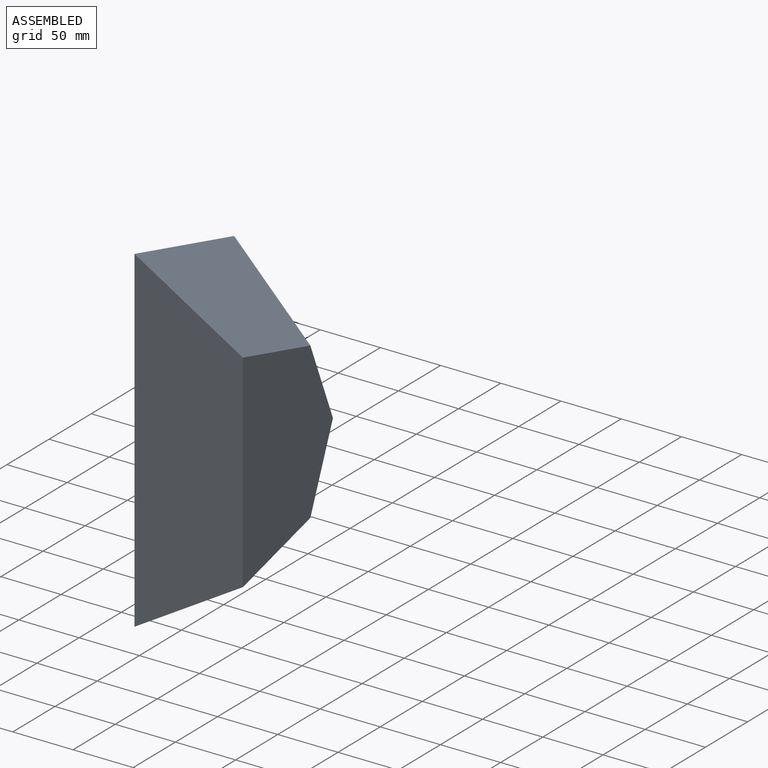
[diagram: assembled view]
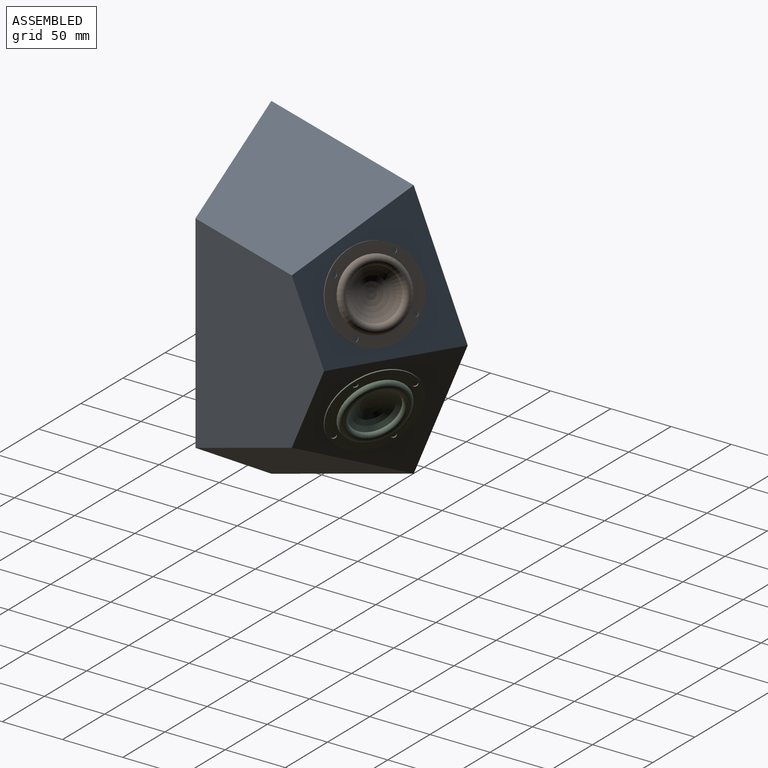
[diagram: assembled view, second angle]
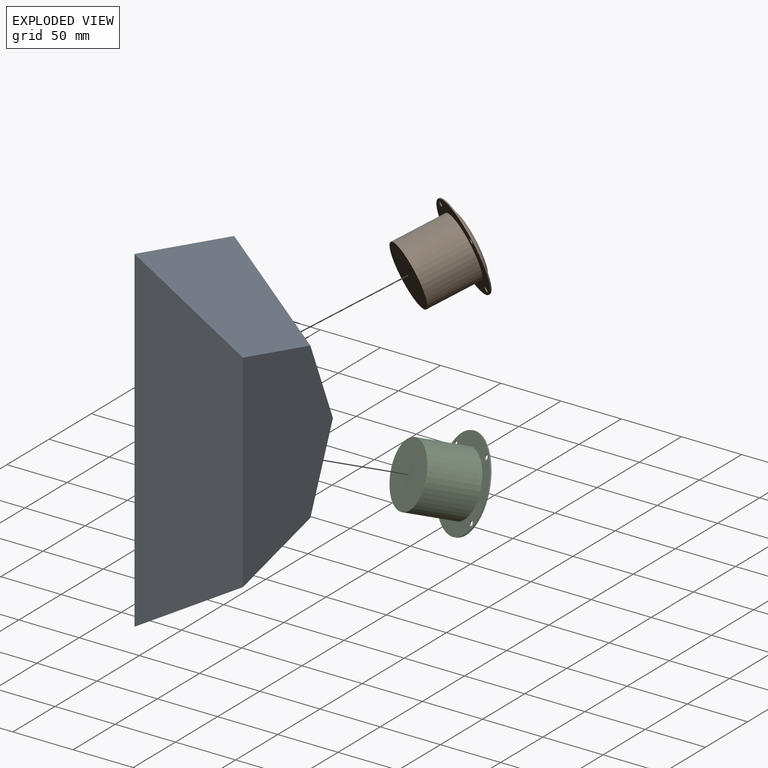
[diagram: exploded view]
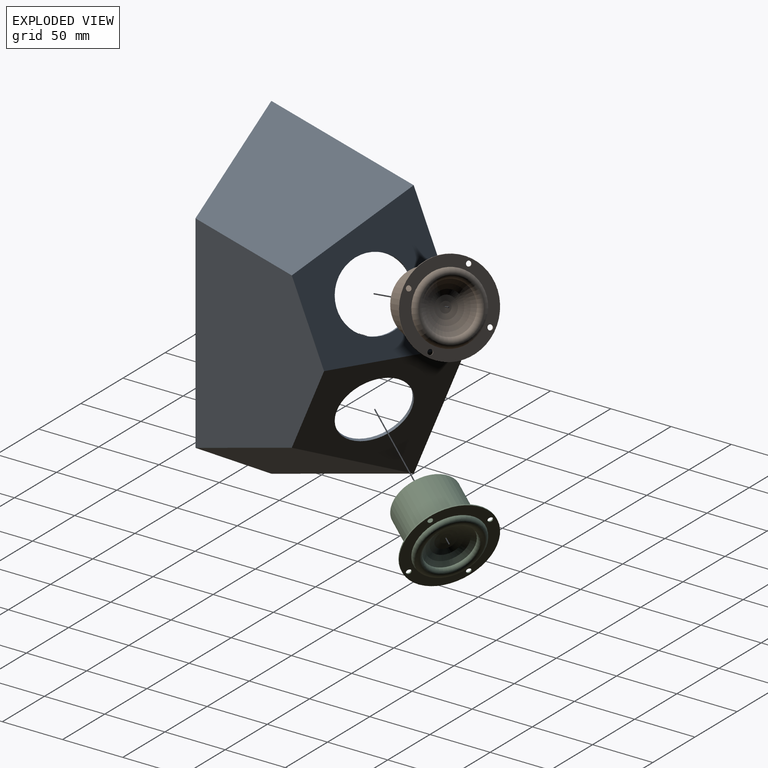
[diagram: exploded view, second angle]
ASSEMBLY  parts=3 mates=4
PART A: 15 faces, bbox 90x163x279.8 mm
  f0: plane 108.23x90mm, normal (0.5,0.8,-0.33), area 7082.4mm2, adj f1,f4,f5,f6,f13
  f1: plane 108.23x90mm, normal (0.5,0.8,0.33), area 7082.4mm2, adj f0,f2,f5,f6,f14
  f2: plane 118.2x90mm, normal (0.5,0.22,0.84), area 10662.1mm2, adj f1,f3,f5,f6
  f3: plane 279.8x90mm, normal (0,-1,0), area 20340.9mm2, adj f2,f4,f5,f6
  f4: plane 118.2x90mm, normal (0.5,0.22,-0.84), area 10662.1mm2, adj f0,f3,f5,f6
  f5: plane 172.22x106.79mm, normal (1,0,0), area 13794.7mm2, adj f0,f1,f2,f3,f4
  f6: plane 279.8x163.03mm, normal (-1,0,0), area 2084.2mm2, adj f0,f1,f2,f3,f4,f7,f8,f9
  f7: plane 105.77x87.46mm, normal (-0.5,-0.8,0.33), area 6606.4mm2, adj f6,f8,f11,f12,f13
  f8: plane 105.77x87.46mm, normal (-0.5,-0.8,-0.33), area 6606.4mm2, adj f6,f7,f9,f12,f14
  f9: plane 113.5x87.46mm, normal (-0.5,-0.22,-0.84), area 9926.5mm2, adj f6,f8,f10,f12
  f10: plane 272.37x87.46mm, normal (0,1,0), area 19249.4mm2, adj f6,f9,f11,f12
  f11: plane 113.5x87.46mm, normal (-0.5,-0.22,0.84), area 9926.5mm2, adj f6,f7,f10,f12
  f12: plane 167.82x102.66mm, normal (-1,0,0), area 12922.1mm2, adj f7,f8,f9,f10,f11
  f13: cylinder r=29mm len=55.56mm, axis (0.5,0.8,-0.33), area 462.8mm2, adj f0,f7
  f14: cylinder r=29mm len=55.56mm, axis (0.5,0.8,0.33), area 462.8mm2, adj f1,f8
PART B: 11 faces, bbox 74x74x48 mm
  f0: plane 52x52mm, normal (0,0,1), area 2123.7mm2, adj f1
  f1: cylinder r=26mm len=52mm, axis (0,0,-1), area 7024.6mm2, adj f0,f2
  f2: plane 74x74mm, normal (0,0,1), area 2121.7mm2, adj f1,f3,f5,f6,f7,f8
  f3: cylinder r=37mm len=74mm, axis (0,0,-1), area 232.5mm2, adj f2,f4
  f4: plane 74x74mm, normal (0,0,-1), area 1782.4mm2, adj f3,f5,f6,f7,f8,f9
  f5: cylinder r=2.1mm len=4.2mm, axis (0,0,-1), area 13.2mm2, adj f2,f4
  f6: cylinder r=2.1mm len=4.2mm, axis (0,0,-1), area 13.2mm2, adj f2,f4
  f7: cylinder r=2.1mm len=4.2mm, axis (0,0,-1), area 13.2mm2, adj f2,f4
  f8: cylinder r=2.1mm len=4.2mm, axis (0,0,-1), area 13.2mm2, adj f2,f4
  f9: torus R=24mm, axis (0,0,-1), area 1895mm2, adj f4,f10
  f10: sphere r=30mm, area 1440mm2, adj f9
PART C: same geometry as B
PLACE A t=(-23.03,183.98,229.7)mm
PLACE B rot(axis=(0.69,0.48,-0.55),153.7deg) t=(0.47,159.79,258.68)mm
PLACE C rot(axis=(0.9,-0.36,-0.24),73.1deg) t=(0.47,159.79,200.73)mm
MATE planar C.f1 <-> A.f0  axis (-0.5,-0.8,0.33) through (21.97,194.19,186.48)mm
MATE cylindrical C.f9 <-> A.f13  axis (0.5,0.8,-0.33) through (0.47,159.79,200.73)mm
MATE cylindrical B.f1 <-> A.f14  axis (0.5,0.8,0.33) through (11.22,176.99,265.8)mm
MATE planar B.f8 <-> A.f14  axis (-0.5,-0.8,-0.33) through (1.76,196.04,298.95)mm
